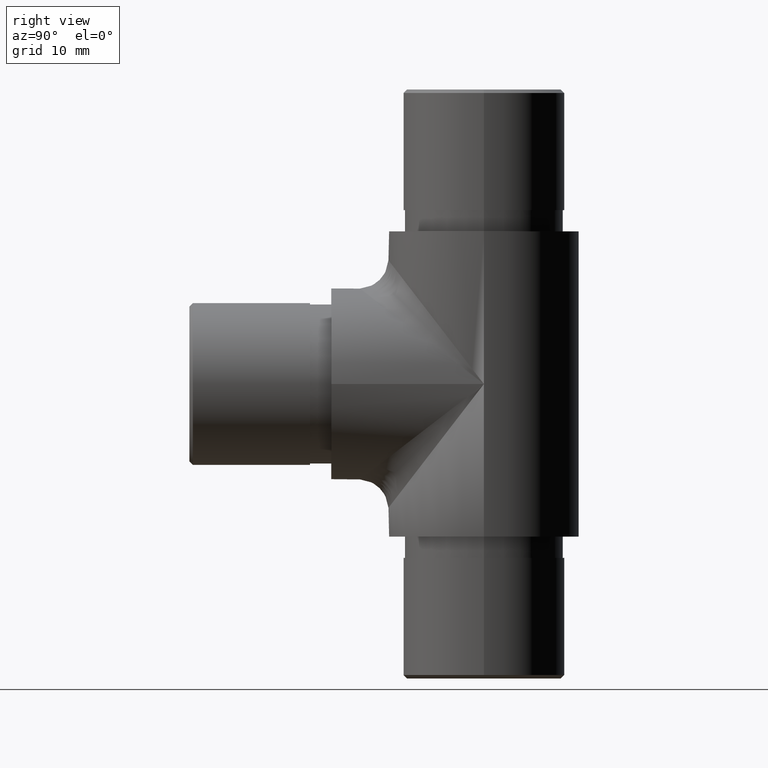
[diagram: clean part render]
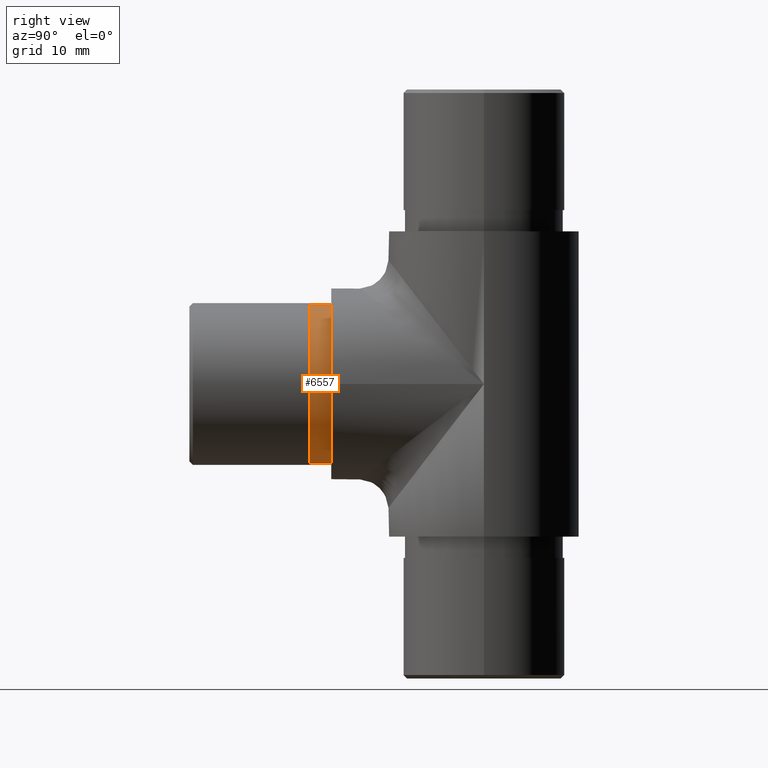
[diagram: same view with one face highlighted and labeled with its STEP entity id]
A machine part, right view. The second image highlights one B-rep face of the part: STEP entity #6557.
In plain terms, the highlighted cylindrical surface (bore or boss wall) has radius 11.2 mm, axis along (-0, 1, -0).
Its self-contained STEP definition (entity closure, byte-faithful):
#639 = CIRCLE ( 'NONE', #6628, 11.20000000000000100 ) ;
#2446 = FACE_OUTER_BOUND ( 'NONE', #12729, .T. ) ;
#2682 = DIRECTION ( 'NONE',  ( 0.0000000000000000000, -1.000000000000000000, 0.0000000000000000000 ) ) ;
#3497 = VERTEX_POINT ( 'NONE', #10626 ) ;
#3507 = DIRECTION ( 'NONE',  ( -0.0000000000000000000, -1.000000000000000000, -0.0000000000000000000 ) ) ;
#3771 = EDGE_LOOP ( 'NONE', ( #4525 ) ) ;
#4291 = DIRECTION ( 'NONE',  ( 0.0000000000000000000, 0.0000000000000000000, 1.000000000000000000 ) ) ;
#4525 = ORIENTED_EDGE ( 'NONE', *, *, #10793, .F. ) ;
#4650 = CARTESIAN_POINT ( 'NONE',  ( 0.0000000000000000000, 20.00000000000000000, 0.0000000000000000000 ) ) ;
#4900 = CIRCLE ( 'NONE', #9423, 11.20000000000000100 ) ;
#5009 = CYLINDRICAL_SURFACE ( 'NONE', #5718, 11.20000000000000100 ) ;
#5340 = ORIENTED_EDGE ( 'NONE', *, *, #11515, .T. ) ;
#5718 = AXIS2_PLACEMENT_3D ( 'NONE', #10914, #7678, #4291 ) ;
#6557 = ADVANCED_FACE ( 'NONE', ( #6730, #2446 ), #5009, .T. ) ;
#6628 = AXIS2_PLACEMENT_3D ( 'NONE', #7017, #2682, #11313 ) ;
#6730 = FACE_OUTER_BOUND ( 'NONE', #3771, .T. ) ;
#7017 = CARTESIAN_POINT ( 'NONE',  ( 0.0000000000000000000, 17.00000000000000000, 0.0000000000000000000 ) ) ;
#7678 = DIRECTION ( 'NONE',  ( -0.0000000000000000000, 1.000000000000000000, -0.0000000000000000000 ) ) ;
#9423 = AXIS2_PLACEMENT_3D ( 'NONE', #4650, #3507, #11126 ) ;
#10458 = VERTEX_POINT ( 'NONE', #12631 ) ;
#10626 = CARTESIAN_POINT ( 'NONE',  ( 0.0000000000000000000, 20.00000000000000000, 11.20000000000000100 ) ) ;
#10793 = EDGE_CURVE ( 'NONE', #10458, #10458, #639, .T. ) ;
#10914 = CARTESIAN_POINT ( 'NONE',  ( 0.0000000000000000000, 17.00000000000000000, 0.0000000000000000000 ) ) ;
#11126 = DIRECTION ( 'NONE',  ( 0.0000000000000000000, 0.0000000000000000000, 1.000000000000000000 ) ) ;
#11313 = DIRECTION ( 'NONE',  ( 0.0000000000000000000, 0.0000000000000000000, -1.000000000000000000 ) ) ;
#11515 = EDGE_CURVE ( 'NONE', #3497, #3497, #4900, .T. ) ;
#12631 = CARTESIAN_POINT ( 'NONE',  ( 0.0000000000000000000, 17.00000000000000000, -11.20000000000000100 ) ) ;
#12729 = EDGE_LOOP ( 'NONE', ( #5340 ) ) ;